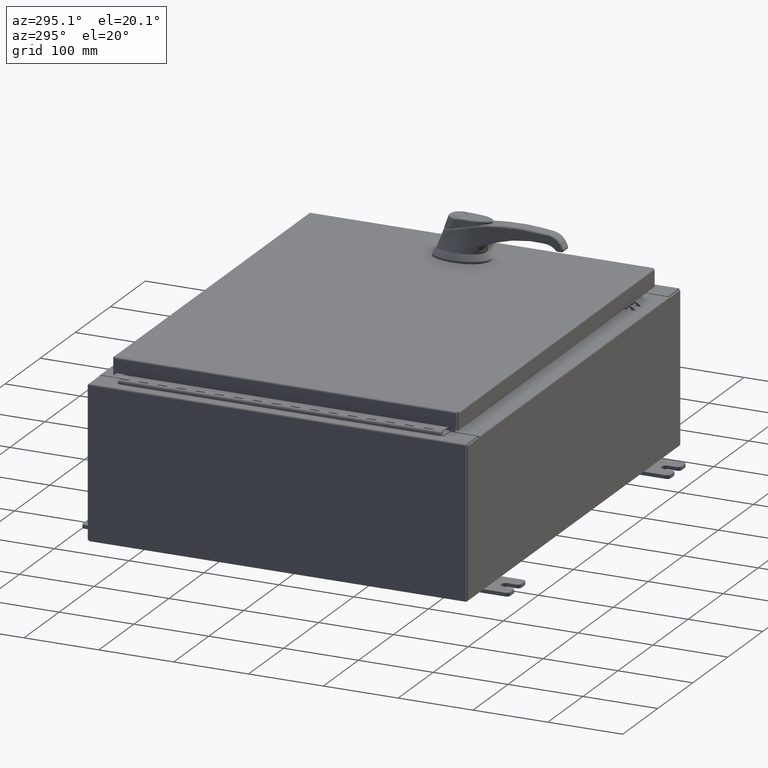
[diagram: clean part render]
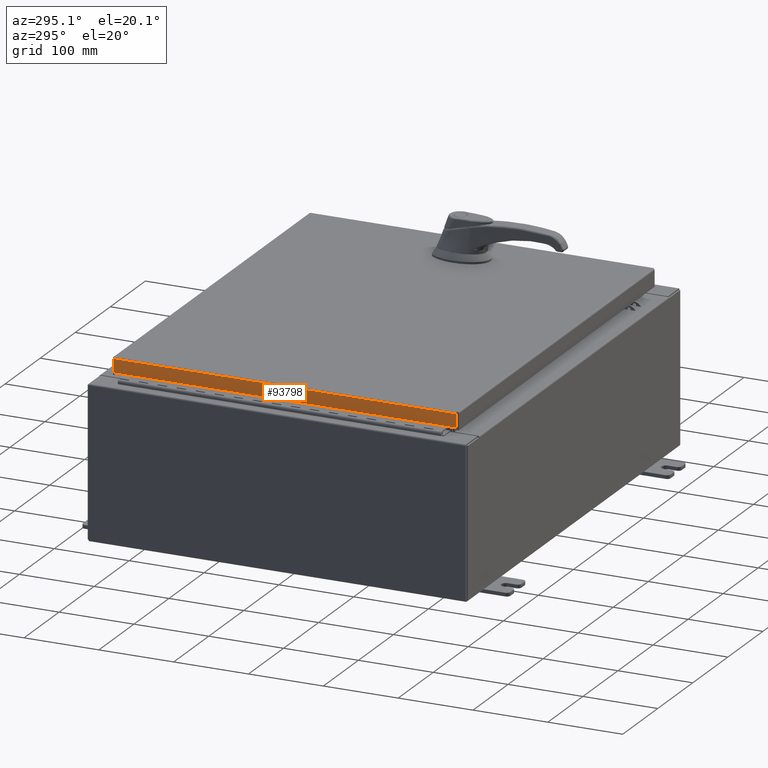
[diagram: same view with one face highlighted and labeled with its STEP entity id]
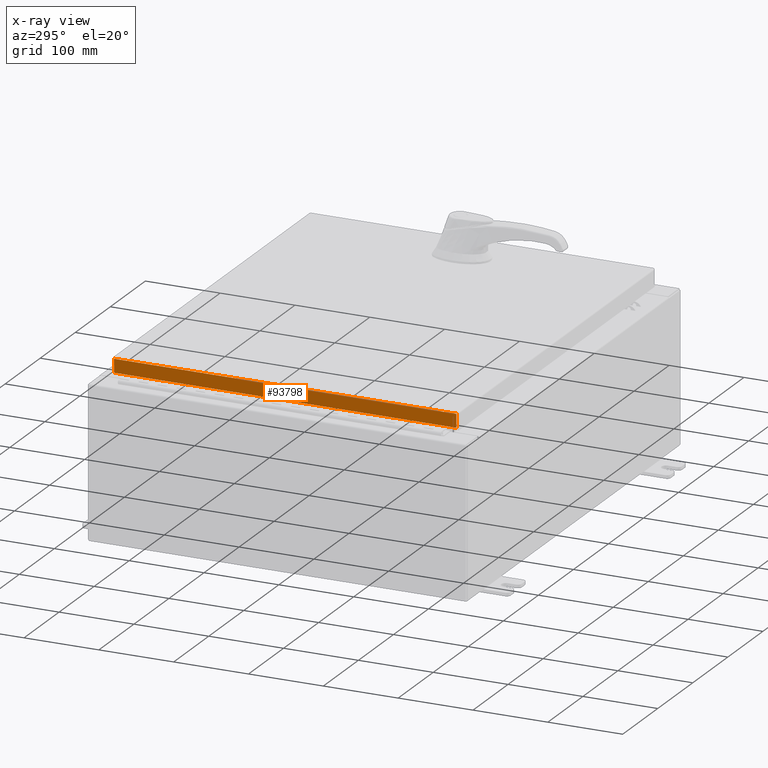
[diagram: x-ray of the same camera — body ghosted, the highlighted face saturated]
A machine part, auxiliary view. The second image highlights one B-rep face of the part: STEP entity #93798.
The next image is the same camera in x-ray: the body ghosted, the highlighted face saturated — about 0% of this face is hidden behind the body in this view.
In plain terms, the highlighted planar face has unit normal (1, 0, -0).
Its self-contained STEP definition (entity closure, byte-faithful):
#3590 = CARTESIAN_POINT ( 'NONE',  ( -11.07800000000000300, -9.093999999999999400, -0.7949999999999997100 ) ) ;
#3648 = CARTESIAN_POINT ( 'NONE',  ( -11.07800000000000300, -9.005157864376261800, -0.7949999999999996000 ) ) ;
#4279 = AXIS2_PLACEMENT_3D ( 'NONE', #60055, #8900, #68579 ) ;
#4342 = VECTOR ( 'NONE', #24320, 39.37007874015748100 ) ;
#5667 = VERTEX_POINT ( 'NONE', #36548 ) ;
#6926 = DIRECTION ( 'NONE',  ( -3.034122441942816500E-015, 6.982962677686267500E-015, -1.000000000000000000 ) ) ;
#8515 = PLANE ( 'NONE',  #4279 ) ;
#8824 = LINE ( 'NONE', #49891, #96921 ) ;
#8900 = DIRECTION ( 'NONE',  ( 1.000000000000000000, 3.645815397208356400E-031, -3.034122441942816500E-015 ) ) ;
#12501 = ORIENTED_EDGE ( 'NONE', *, *, #94265, .F. ) ;
#13623 = VERTEX_POINT ( 'NONE', #90115 ) ;
#20055 = EDGE_CURVE ( 'NONE', #5667, #103581, #8824, .T. ) ;
#24320 = DIRECTION ( 'NONE',  ( 3.645815397208356400E-031, -1.000000000000000000, -1.074717912135910100E-045 ) ) ;
#26726 = LINE ( 'NONE', #75186, #66756 ) ;
#32342 = LINE ( 'NONE', #75431, #4342 ) ;
#33907 = CARTESIAN_POINT ( 'NONE',  ( -11.07799999999999900, 9.005157864376270600, -0.08770000000000004200 ) ) ;
#36548 = CARTESIAN_POINT ( 'NONE',  ( -11.07799999999999900, -9.005157864376268900, -0.08770000000000007000 ) ) ;
#40074 = ORIENTED_EDGE ( 'NONE', *, *, #81810, .T. ) ;
#41319 = VECTOR ( 'NONE', #71828, 39.37007874015748100 ) ;
#49891 = CARTESIAN_POINT ( 'NONE',  ( -11.07799999999999900, -9.005157864376267100, -0.07469999999999976700 ) ) ;
#53312 = ORIENTED_EDGE ( 'NONE', *, *, #104281, .F. ) ;
#55885 = VERTEX_POINT ( 'NONE', #33907 ) ;
#60055 = CARTESIAN_POINT ( 'NONE',  ( -11.07799999999999900, -4.038834297027417500E-030, 3.387282206785410600E-014 ) ) ;
#64080 = LINE ( 'NONE', #3590, #41319 ) ;
#66756 = VECTOR ( 'NONE', #6926, 39.37007874015748100 ) ;
#67050 = DIRECTION ( 'NONE',  ( -3.034122441942816500E-015, 6.982962677686267500E-015, -1.000000000000000000 ) ) ;
#68579 = DIRECTION ( 'NONE',  ( -3.034122441942816500E-015, 0.0000000000000000000, -1.000000000000000000 ) ) ;
#71828 = DIRECTION ( 'NONE',  ( 4.379057701015054300E-047, 1.000000000000000000, 1.201604571657912400E-016 ) ) ;
#75186 = CARTESIAN_POINT ( 'NONE',  ( -11.07799999999999900, 9.005157864376268900, 9.675550334146656300E-014 ) ) ;
#75431 = CARTESIAN_POINT ( 'NONE',  ( -11.07799999999999900, -9.093999999999999400, -0.08770000000000004200 ) ) ;
#81810 = EDGE_CURVE ( 'NONE', #55885, #13623, #26726, .T. ) ;
#90115 = CARTESIAN_POINT ( 'NONE',  ( -11.07800000000000300, 9.005157864376274200, -0.7949999999999974900 ) ) ;
#93798 = ADVANCED_FACE ( 'NONE', ( #102869 ), #8515, .F. ) ;
#93903 = ORIENTED_EDGE ( 'NONE', *, *, #20055, .F. ) ;
#94128 = EDGE_LOOP ( 'NONE', ( #53312, #40074, #12501, #93903 ) ) ;
#94265 = EDGE_CURVE ( 'NONE', #103581, #13623, #64080, .T. ) ;
#96921 = VECTOR ( 'NONE', #67050, 39.37007874015748100 ) ;
#102869 = FACE_OUTER_BOUND ( 'NONE', #94128, .T. ) ;
#103581 = VERTEX_POINT ( 'NONE', #3648 ) ;
#104281 = EDGE_CURVE ( 'NONE', #55885, #5667, #32342, .T. ) ;